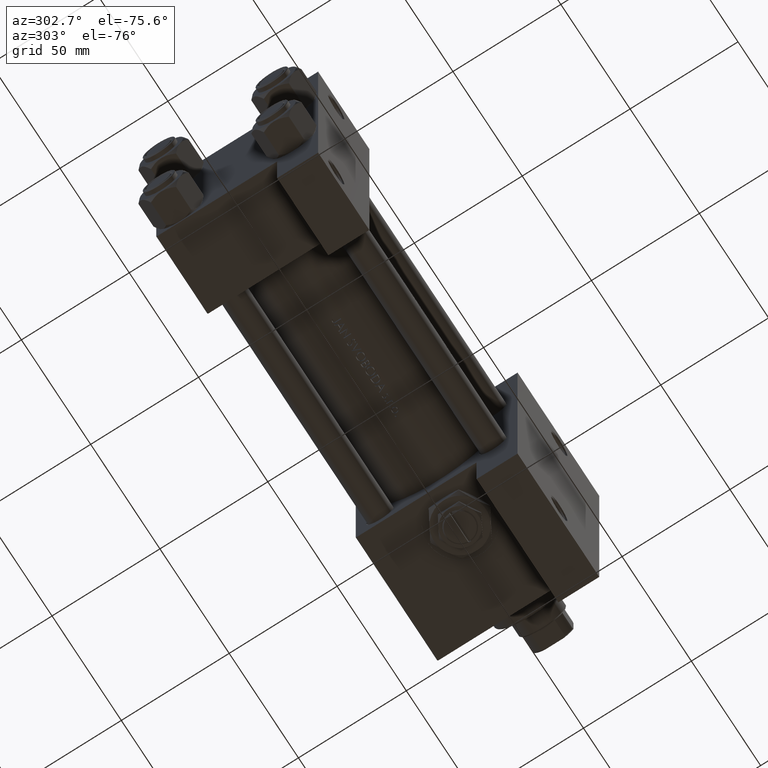
[diagram: clean part render]
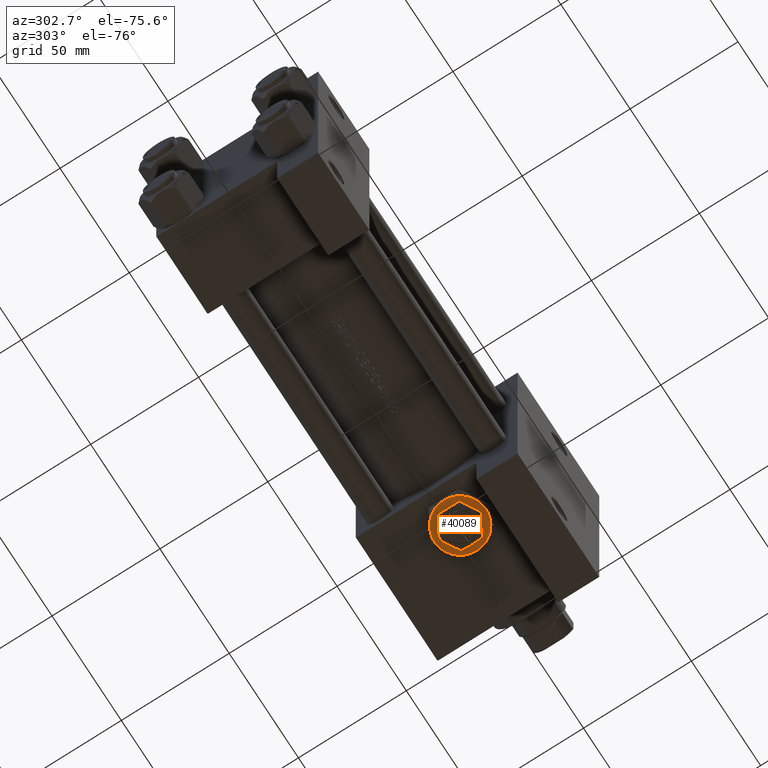
[diagram: same view with one face highlighted and labeled with its STEP entity id]
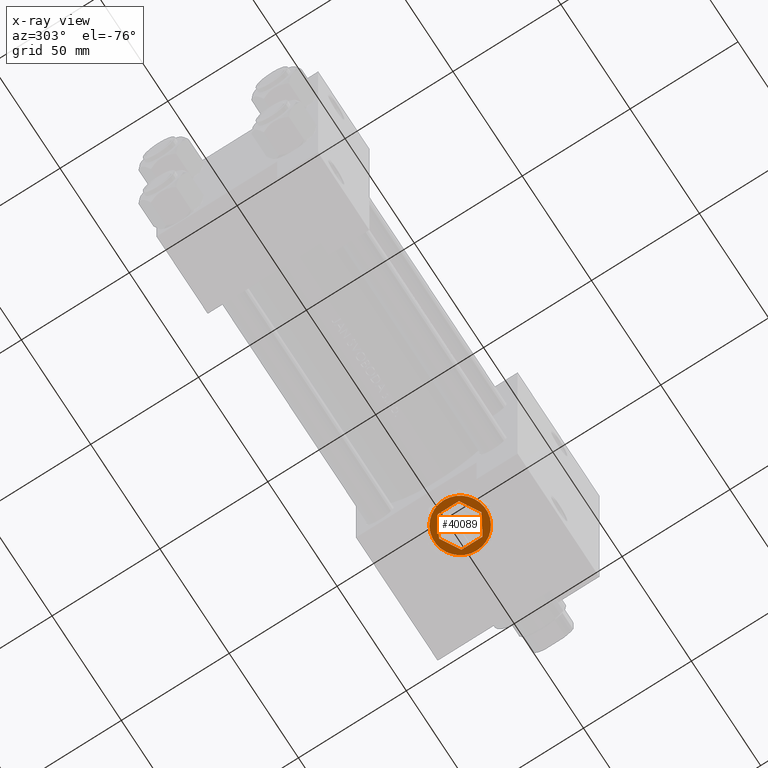
[diagram: x-ray of the same camera — body ghosted, the highlighted face saturated]
A machine part, auxiliary view. The second image highlights one B-rep face of the part: STEP entity #40089.
The next image is the same camera in x-ray: the body ghosted, the highlighted face saturated — about 0% of this face is hidden behind the body in this view.
In plain terms, the highlighted planar face has unit normal (0, 0, -1).
Its self-contained STEP definition (entity closure, byte-faithful):
#618 = CARTESIAN_POINT ( 'NONE',  ( 0.000000000000000000, 0.000000000000000000, 4.299999999999999822 ) ) ;
#1038 = DIRECTION ( 'NONE',  ( 0.8660254037844385966, -0.5000000000000001110, 0.000000000000000000 ) ) ;
#1255 = CARTESIAN_POINT ( 'NONE',  ( 0.000000000000000000, 0.000000000000000000, 4.299999999999999822 ) ) ;
#1507 = FACE_BOUND ( 'NONE', #4239, .T. ) ;
#1795 = VERTEX_POINT ( 'NONE', #3145 ) ;
#1835 = EDGE_CURVE ( 'NONE', #42372, #35171, #5028, .T. ) ;
#2032 = VECTOR ( 'NONE', #31968, 1000.000000000000000 ) ;
#2669 = DIRECTION ( 'NONE',  ( -0.8660254037844385966, -0.5000000000000000000, 0.000000000000000000 ) ) ;
#3145 = CARTESIAN_POINT ( 'NONE',  ( 5.999999999999998224, -10.39230484541326760, 4.299999999999999822 ) ) ;
#3463 = CARTESIAN_POINT ( 'NONE',  ( -8.500000000000000000, -4.907477288111819824, 4.299999999999999822 ) ) ;
#3512 = ORIENTED_EDGE ( 'NONE', *, *, #11172, .F. ) ;
#3939 = CARTESIAN_POINT ( 'NONE',  ( 6.000000000000000888, 10.39230484541326582, 4.299999999999999822 ) ) ;
#4239 = EDGE_LOOP ( 'NONE', ( #47653, #35965, #11475, #3512, #27242, #17994 ) ) ;
#4281 = AXIS2_PLACEMENT_3D ( 'NONE', #29527, #48482, #36776 ) ;
#5028 = CIRCLE ( 'NONE', #4281, 12.00000000000000178 ) ;
#5555 = VERTEX_POINT ( 'NONE', #3939 ) ;
#6629 = DIRECTION ( 'NONE',  ( 0.000000000000000000, 0.000000000000000000, 1.000000000000000000 ) ) ;
#8301 = CARTESIAN_POINT ( 'NONE',  ( -12.00000000000000178, 0.000000000000000000, 4.299999999999999822 ) ) ;
#9535 = EDGE_CURVE ( 'NONE', #5555, #42372, #37915, .T. ) ;
#9943 = LINE ( 'NONE', #20661, #24490 ) ;
#10062 = ORIENTED_EDGE ( 'NONE', *, *, #37968, .T. ) ;
#10078 = DIRECTION ( 'NONE',  ( 0.000000000000000000, 0.000000000000000000, 1.000000000000000000 ) ) ;
#11172 = EDGE_CURVE ( 'NONE', #38441, #42502, #9943, .T. ) ;
#11351 = ORIENTED_EDGE ( 'NONE', *, *, #30939, .T. ) ;
#11475 = ORIENTED_EDGE ( 'NONE', *, *, #25107, .F. ) ;
#12993 = DIRECTION ( 'NONE',  ( 0.000000000000000000, 0.000000000000000000, 1.000000000000000000 ) ) ;
#13234 = CARTESIAN_POINT ( 'NONE',  ( -6.000000000000001776, 10.39230484541326405, 4.299999999999999822 ) ) ;
#13620 = AXIS2_PLACEMENT_3D ( 'NONE', #29223, #10078, #40479 ) ;
#14257 = VERTEX_POINT ( 'NONE', #23271 ) ;
#15147 = VECTOR ( 'NONE', #2669, 1000.000000000000227 ) ;
#15806 = VERTEX_POINT ( 'NONE', #3463 ) ;
#16088 = DIRECTION ( 'NONE',  ( 0.000000000000000000, 0.000000000000000000, 1.000000000000000000 ) ) ;
#17287 = CARTESIAN_POINT ( 'NONE',  ( -8.500000000000000000, 4.907477288111818048, 4.299999999999999822 ) ) ;
#17994 = ORIENTED_EDGE ( 'NONE', *, *, #30309, .F. ) ;
#18258 = ORIENTED_EDGE ( 'NONE', *, *, #9535, .T. ) ;
#18360 = EDGE_CURVE ( 'NONE', #15806, #38441, #26927, .T. ) ;
#18724 = CARTESIAN_POINT ( 'NONE',  ( 0.000000000000000000, 9.814954576223637872, 4.299999999999999822 ) ) ;
#19552 = AXIS2_PLACEMENT_3D ( 'NONE', #19970, #12993, #27406 ) ;
#19830 = CARTESIAN_POINT ( 'NONE',  ( 0.000000000000000000, 0.000000000000000000, 4.299999999999999822 ) ) ;
#19970 = CARTESIAN_POINT ( 'NONE',  ( 0.000000000000000000, 0.000000000000000000, 4.299999999999999822 ) ) ;
#20661 = CARTESIAN_POINT ( 'NONE',  ( -2.644623992720612091E-15, -9.814954576223637872, 4.299999999999999822 ) ) ;
#22109 = LINE ( 'NONE', #48015, #46285 ) ;
#23271 = CARTESIAN_POINT ( 'NONE',  ( 8.499999999999996447, 4.907477288111821601, 4.299999999999999822 ) ) ;
#23425 = FACE_OUTER_BOUND ( 'NONE', #31800, .T. ) ;
#23589 = EDGE_CURVE ( 'NONE', #35701, #1795, #44654, .T. ) ;
#23913 = PLANE ( 'NONE',  #37365 ) ;
#24490 = VECTOR ( 'NONE', #32332, 1000.000000000000114 ) ;
#25107 = EDGE_CURVE ( 'NONE', #42502, #14257, #22109, .T. ) ;
#25901 = CIRCLE ( 'NONE', #19552, 12.00000000000000178 ) ;
#26510 = DIRECTION ( 'NONE',  ( 0.000000000000000000, 0.000000000000000000, 1.000000000000000000 ) ) ;
#26927 = LINE ( 'NONE', #42875, #43657 ) ;
#27006 = ORIENTED_EDGE ( 'NONE', *, *, #23589, .T. ) ;
#27242 = ORIENTED_EDGE ( 'NONE', *, *, #18360, .F. ) ;
#27406 = DIRECTION ( 'NONE',  ( 1.000000000000000000, 0.000000000000000000, 0.000000000000000000 ) ) ;
#27490 = ORIENTED_EDGE ( 'NONE', *, *, #46096, .T. ) ;
#27692 = AXIS2_PLACEMENT_3D ( 'NONE', #19830, #16088, #28683 ) ;
#28683 = DIRECTION ( 'NONE',  ( 1.000000000000000000, 0.000000000000000000, 0.000000000000000000 ) ) ;
#29039 = CARTESIAN_POINT ( 'NONE',  ( 0.000000000000000000, 9.814954576223637872, 4.299999999999999822 ) ) ;
#29223 = CARTESIAN_POINT ( 'NONE',  ( 0.000000000000000000, 0.000000000000000000, 4.299999999999999822 ) ) ;
#29527 = CARTESIAN_POINT ( 'NONE',  ( 0.000000000000000000, 0.000000000000000000, 4.299999999999999822 ) ) ;
#29537 = LINE ( 'NONE', #29039, #15147 ) ;
#29801 = CARTESIAN_POINT ( 'NONE',  ( -6.000000000000000000, -10.39230484541326582, 4.299999999999999822 ) ) ;
#29938 = AXIS2_PLACEMENT_3D ( 'NONE', #618, #26510, #41724 ) ;
#30309 = EDGE_CURVE ( 'NONE', #44194, #15806, #39721, .T. ) ;
#30614 = VERTEX_POINT ( 'NONE', #32150 ) ;
#30750 = CARTESIAN_POINT ( 'NONE',  ( 8.499999999999996447, 4.907477288111821601, 4.299999999999999822 ) ) ;
#30939 = EDGE_CURVE ( 'NONE', #35171, #35701, #25901, .T. ) ;
#31800 = EDGE_LOOP ( 'NONE', ( #27490, #10062, #18258, #37475, #11351, #27006 ) ) ;
#31968 = DIRECTION ( 'NONE',  ( 0.000000000000000000, -1.000000000000000000, 0.000000000000000000 ) ) ;
#32150 = CARTESIAN_POINT ( 'NONE',  ( 11.99999999999999645, 3.004629197474318063E-15, 4.299999999999999822 ) ) ;
#32332 = DIRECTION ( 'NONE',  ( 0.8660254037844388186, 0.4999999999999997224, 0.000000000000000000 ) ) ;
#32677 = AXIS2_PLACEMENT_3D ( 'NONE', #40023, #6629, #44249 ) ;
#34092 = CARTESIAN_POINT ( 'NONE',  ( -2.644623992720612091E-15, -9.814954576223637872, 4.299999999999999822 ) ) ;
#35018 = CARTESIAN_POINT ( 'NONE',  ( 8.500000000000000000, -4.907477288111819824, 4.299999999999999822 ) ) ;
#35171 = VERTEX_POINT ( 'NONE', #8301 ) ;
#35701 = VERTEX_POINT ( 'NONE', #29801 ) ;
#35965 = ORIENTED_EDGE ( 'NONE', *, *, #44424, .F. ) ;
#36301 = DIRECTION ( 'NONE',  ( -3.534857879381550604E-16, 1.000000000000000000, 0.000000000000000000 ) ) ;
#36570 = VECTOR ( 'NONE', #37996, 1000.000000000000114 ) ;
#36776 = DIRECTION ( 'NONE',  ( 1.000000000000000000, 0.000000000000000000, 0.000000000000000000 ) ) ;
#37365 = AXIS2_PLACEMENT_3D ( 'NONE', #1255, #46836, #39363 ) ;
#37475 = ORIENTED_EDGE ( 'NONE', *, *, #1835, .T. ) ;
#37915 = CIRCLE ( 'NONE', #29938, 12.00000000000000178 ) ;
#37968 = EDGE_CURVE ( 'NONE', #30614, #5555, #46823, .T. ) ;
#37996 = DIRECTION ( 'NONE',  ( -0.8660254037844387076, 0.4999999999999998890, 0.000000000000000000 ) ) ;
#38441 = VERTEX_POINT ( 'NONE', #34092 ) ;
#39363 = DIRECTION ( 'NONE',  ( 1.000000000000000000, 0.000000000000000000, -0.000000000000000000 ) ) ;
#39721 = LINE ( 'NONE', #17287, #2032 ) ;
#40023 = CARTESIAN_POINT ( 'NONE',  ( 0.000000000000000000, 0.000000000000000000, 4.299999999999999822 ) ) ;
#40089 = ADVANCED_FACE ( 'NONE', ( #23425, #1507 ), #23913, .T. ) ;
#40479 = DIRECTION ( 'NONE',  ( 1.000000000000000000, 0.000000000000000000, 0.000000000000000000 ) ) ;
#41724 = DIRECTION ( 'NONE',  ( 1.000000000000000000, 0.000000000000000000, 0.000000000000000000 ) ) ;
#42016 = VERTEX_POINT ( 'NONE', #18724 ) ;
#42372 = VERTEX_POINT ( 'NONE', #13234 ) ;
#42502 = VERTEX_POINT ( 'NONE', #35018 ) ;
#42875 = CARTESIAN_POINT ( 'NONE',  ( -8.500000000000000000, -4.907477288111819824, 4.299999999999999822 ) ) ;
#43657 = VECTOR ( 'NONE', #1038, 1000.000000000000114 ) ;
#44194 = VERTEX_POINT ( 'NONE', #47990 ) ;
#44249 = DIRECTION ( 'NONE',  ( 1.000000000000000000, 0.000000000000000000, 0.000000000000000000 ) ) ;
#44424 = EDGE_CURVE ( 'NONE', #14257, #42016, #49211, .T. ) ;
#44654 = CIRCLE ( 'NONE', #13620, 12.00000000000000178 ) ;
#45200 = EDGE_CURVE ( 'NONE', #42016, #44194, #29537, .T. ) ;
#46096 = EDGE_CURVE ( 'NONE', #1795, #30614, #47813, .T. ) ;
#46285 = VECTOR ( 'NONE', #36301, 1000.000000000000000 ) ;
#46823 = CIRCLE ( 'NONE', #27692, 12.00000000000000178 ) ;
#46836 = DIRECTION ( 'NONE',  ( 0.000000000000000000, 0.000000000000000000, 1.000000000000000000 ) ) ;
#47653 = ORIENTED_EDGE ( 'NONE', *, *, #45200, .F. ) ;
#47813 = CIRCLE ( 'NONE', #32677, 12.00000000000000178 ) ;
#47990 = CARTESIAN_POINT ( 'NONE',  ( -8.500000000000000000, 4.907477288111818048, 4.299999999999999822 ) ) ;
#48015 = CARTESIAN_POINT ( 'NONE',  ( 8.500000000000000000, -4.907477288111819824, 4.299999999999999822 ) ) ;
#48482 = DIRECTION ( 'NONE',  ( 0.000000000000000000, 0.000000000000000000, 1.000000000000000000 ) ) ;
#49211 = LINE ( 'NONE', #30750, #36570 ) ;